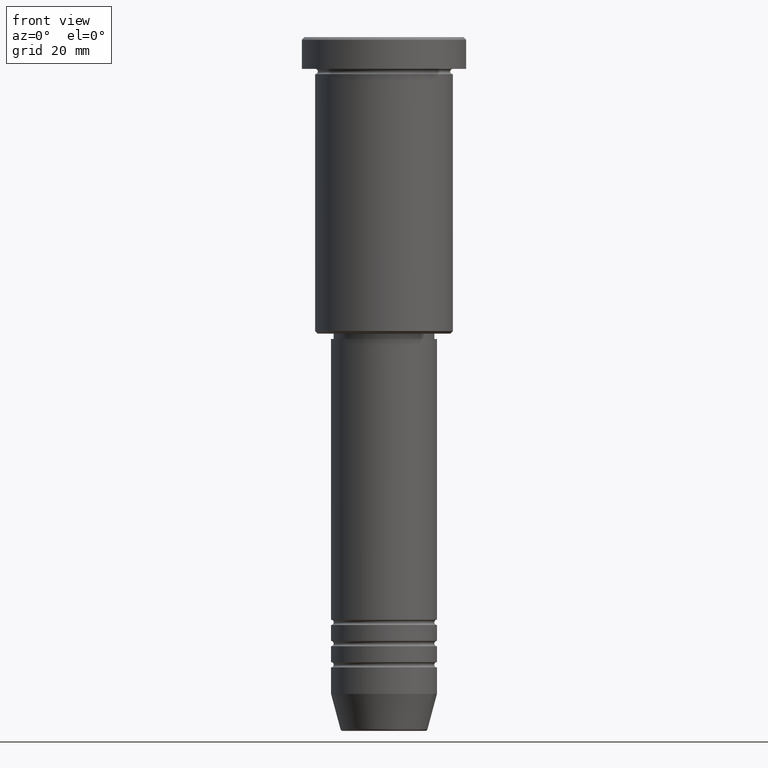
[diagram: clean part render]
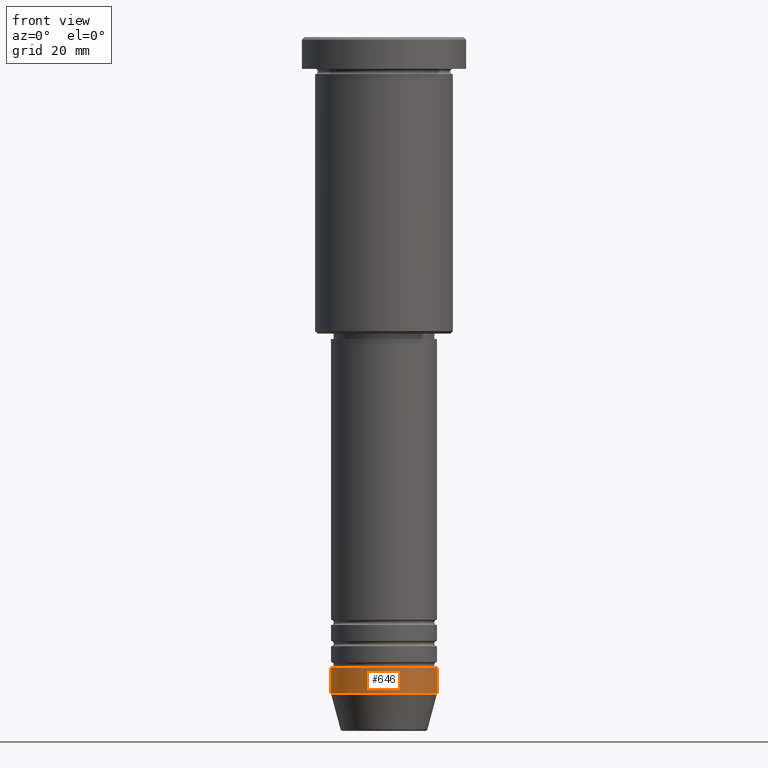
[diagram: same view with one face highlighted and labeled with its STEP entity id]
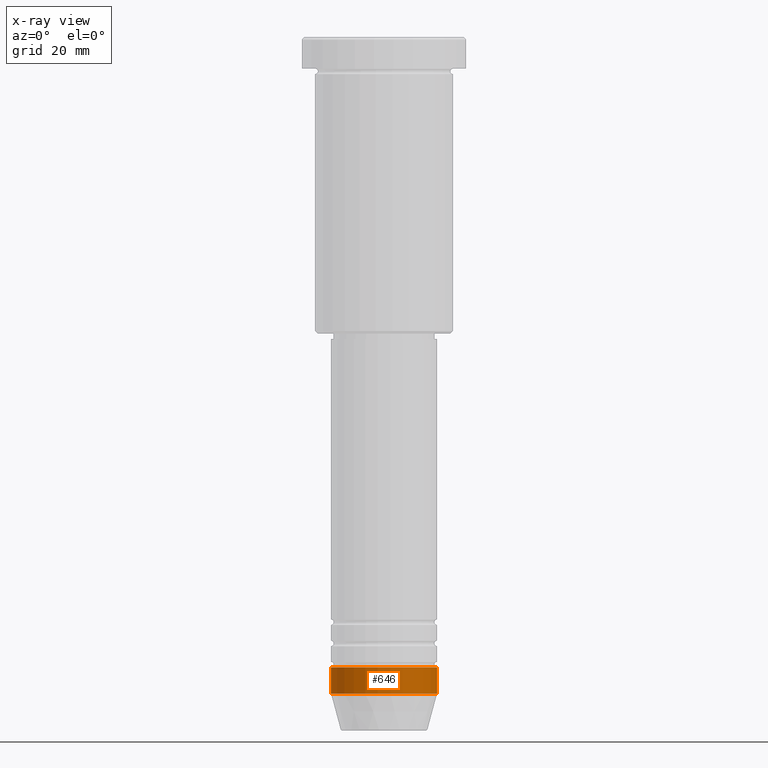
[diagram: x-ray of the same camera — body ghosted, the highlighted face saturated]
A machine part, front view. The second image highlights one B-rep face of the part: STEP entity #646.
The next image is the same camera in x-ray: the body ghosted, the highlighted face saturated — about 0% of this face is hidden behind the body in this view.
In plain terms, the highlighted cylindrical surface (partial cylindrical patch) has radius 10 mm, axis along (-0, -0, 1).
Its self-contained STEP definition (entity closure, byte-faithful):
#19 = CARTESIAN_POINT ( 'NONE',  ( 0.000000000000000000, 0.000000000000000000, -119.0000000000000000 ) ) ;
#47 = CARTESIAN_POINT ( 'NONE',  ( -10.00000000000000000, 1.224646799147353256E-15, 0.000000000000000000 ) ) ;
#70 = DIRECTION ( 'NONE',  ( 1.000000000000000000, 0.000000000000000000, 0.000000000000000000 ) ) ;
#132 = DIRECTION ( 'NONE',  ( 1.000000000000000000, 0.000000000000000000, 0.000000000000000000 ) ) ;
#150 = LINE ( 'NONE', #47, #1147 ) ;
#175 = CYLINDRICAL_SURFACE ( 'NONE', #337, 10.00000000000000000 ) ;
#195 = EDGE_CURVE ( 'NONE', #261, #504, #870, .T. ) ;
#202 = AXIS2_PLACEMENT_3D ( 'NONE', #1056, #238, #599 ) ;
#217 = EDGE_LOOP ( 'NONE', ( #517, #609, #341, #507 ) ) ;
#227 = DIRECTION ( 'NONE',  ( -0.000000000000000000, -0.000000000000000000, 1.000000000000000000 ) ) ;
#238 = DIRECTION ( 'NONE',  ( -0.000000000000000000, -0.000000000000000000, 1.000000000000000000 ) ) ;
#261 = VERTEX_POINT ( 'NONE', #1008 ) ;
#275 = CARTESIAN_POINT ( 'NONE',  ( 10.00000000000000000, 0.000000000000000000, 0.000000000000000000 ) ) ;
#337 = AXIS2_PLACEMENT_3D ( 'NONE', #352, #1143, #70 ) ;
#341 = ORIENTED_EDGE ( 'NONE', *, *, #788, .T. ) ;
#350 = VERTEX_POINT ( 'NONE', #1115 ) ;
#352 = CARTESIAN_POINT ( 'NONE',  ( 0.000000000000000000, 0.000000000000000000, 0.000000000000000000 ) ) ;
#363 = LINE ( 'NONE', #275, #973 ) ;
#381 = CIRCLE ( 'NONE', #721, 10.00000000000000000 ) ;
#432 = DIRECTION ( 'NONE',  ( -0.000000000000000000, -0.000000000000000000, 1.000000000000000000 ) ) ;
#504 = VERTEX_POINT ( 'NONE', #719 ) ;
#507 = ORIENTED_EDGE ( 'NONE', *, *, #987, .F. ) ;
#517 = ORIENTED_EDGE ( 'NONE', *, *, #1176, .F. ) ;
#599 = DIRECTION ( 'NONE',  ( 1.000000000000000000, 0.000000000000000000, 0.000000000000000000 ) ) ;
#609 = ORIENTED_EDGE ( 'NONE', *, *, #195, .T. ) ;
#646 = ADVANCED_FACE ( 'NONE', ( #1097 ), #175, .T. ) ;
#658 = VERTEX_POINT ( 'NONE', #988 ) ;
#719 = CARTESIAN_POINT ( 'NONE',  ( 10.00000000000000000, 0.000000000000000000, -124.0000000000000000 ) ) ;
#721 = AXIS2_PLACEMENT_3D ( 'NONE', #19, #227, #132 ) ;
#788 = EDGE_CURVE ( 'NONE', #504, #350, #363, .T. ) ;
#799 = DIRECTION ( 'NONE',  ( -0.000000000000000000, -0.000000000000000000, 1.000000000000000000 ) ) ;
#870 = CIRCLE ( 'NONE', #202, 10.00000000000000000 ) ;
#973 = VECTOR ( 'NONE', #799, 1000.000000000000000 ) ;
#987 = EDGE_CURVE ( 'NONE', #658, #350, #381, .T. ) ;
#988 = CARTESIAN_POINT ( 'NONE',  ( -10.00000000000000000, 1.224646799147353256E-15, -119.0000000000000000 ) ) ;
#1008 = CARTESIAN_POINT ( 'NONE',  ( -10.00000000000000000, 1.224646799147353256E-15, -124.0000000000000000 ) ) ;
#1056 = CARTESIAN_POINT ( 'NONE',  ( 0.000000000000000000, 0.000000000000000000, -124.0000000000000000 ) ) ;
#1097 = FACE_OUTER_BOUND ( 'NONE', #217, .T. ) ;
#1115 = CARTESIAN_POINT ( 'NONE',  ( 10.00000000000000000, 0.000000000000000000, -119.0000000000000000 ) ) ;
#1143 = DIRECTION ( 'NONE',  ( -0.000000000000000000, -0.000000000000000000, 1.000000000000000000 ) ) ;
#1147 = VECTOR ( 'NONE', #432, 1000.000000000000000 ) ;
#1176 = EDGE_CURVE ( 'NONE', #261, #658, #150, .T. ) ;